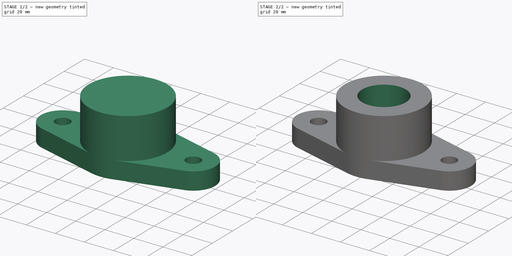
[diagram: build sequence overview — one tinted view per stage of 2, left to right]
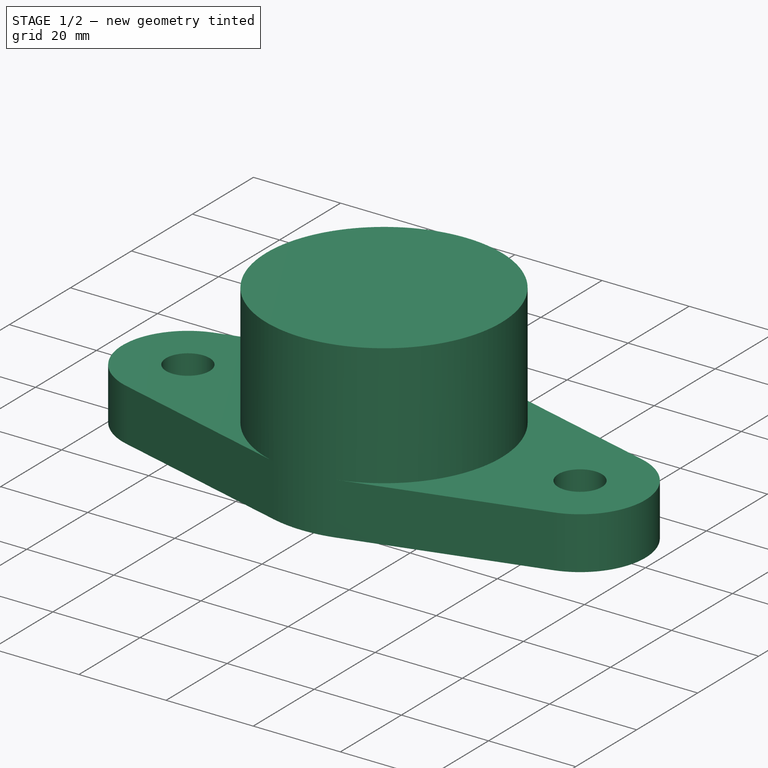
[diagram: stage 1 of 2 — iso view after this stage's code; geometry added in this stage tinted green]
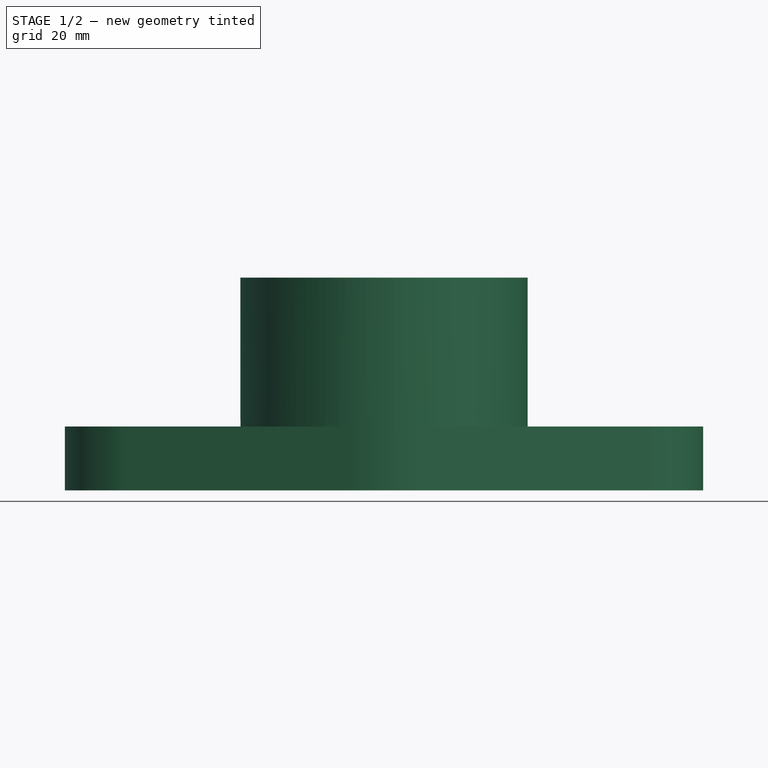
[diagram: stage 1 of 2 — front view after this stage's code; geometry added in this stage tinted green]
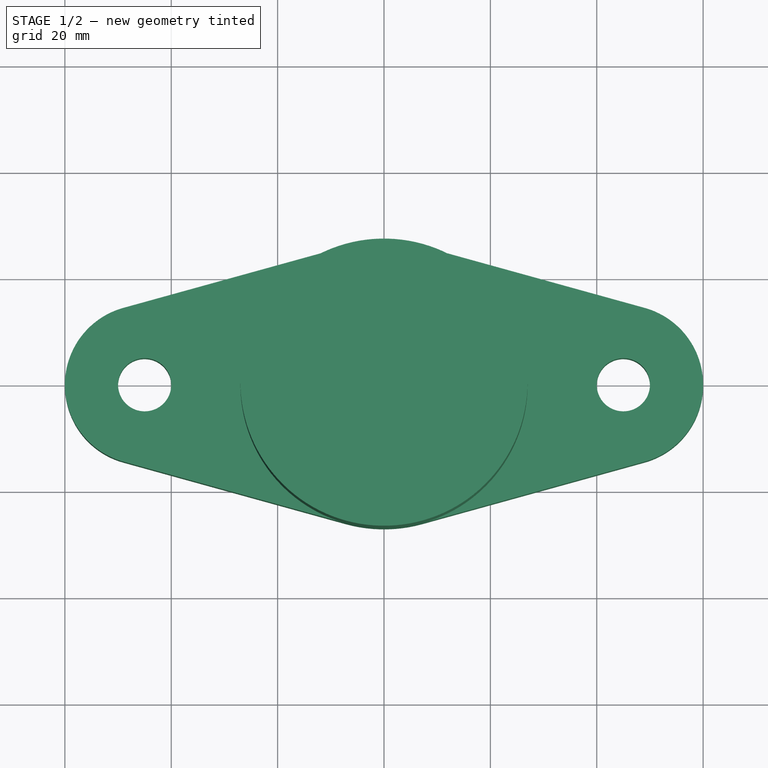
[diagram: stage 1 of 2 — top view after this stage's code; geometry added in this stage tinted green]
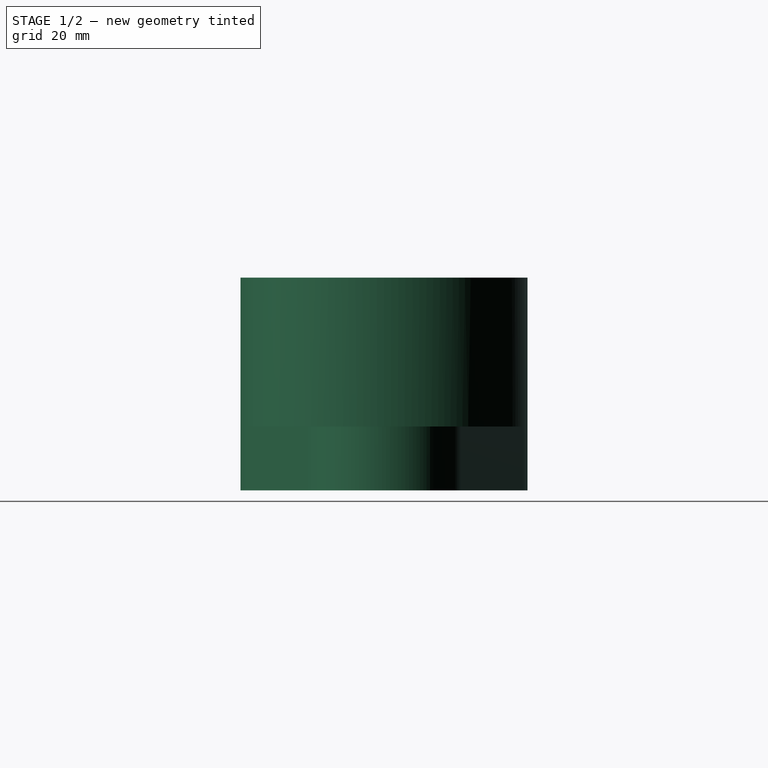
[diagram: stage 1 of 2 — right view after this stage's code; geometry added in this stage tinted green]
FCSTD DOCUMENT  (FreeCAD 0.16R)
Label: Fig 2.56 Final
License: All rights reserved
LicenseURL: http://en.wikipedia.org/wiki/All_rights_reserved
objects: Sketcher::SketchObject×3, PartDesign::Pad×2, PartDesign::Pocket×1
note: 9 computed .brp shape members not serialized (recipe doc carries the construction recipe); baked Part::Feature solids carry a one-line shape summary decoded from their .brp

FEATURE [Sketcher::SketchObject] Sketch
  sketch-geometry (10):
    g0: ArcOfCircle CenterX=0 CenterY=0 CenterZ=0 NormalX=0 NormalY=0 NormalZ=1 Radius=27 StartAngle=1.30086 EndAngle=1.84073
    g1: ArcOfCircle CenterX=45 CenterY=0 CenterZ=0 NormalX=0 NormalY=0 NormalZ=1 Radius=15 StartAngle=4.98232 EndAngle=7.58405
    g2: ArcOfCircle CenterX=-45 CenterY=0 CenterZ=0 NormalX=0 NormalY=0 NormalZ=1 Radius=15 StartAngle=1.84073 EndAngle=4.44246
    g3: Circle CenterX=45 CenterY=0 CenterZ=0 NormalX=0 NormalY=0 NormalZ=1 Radius=5
    g4: Circle CenterX=-45 CenterY=0 CenterZ=0 NormalX=0 NormalY=0 NormalZ=1 Radius=5
    g5: LineSegment StartX=-49 StartY=14.4568 StartZ=0 EndX=-7.2 EndY=26.0223 EndZ=0
    g6: LineSegment StartX=7.2 StartY=26.0223 StartZ=0 EndX=49 EndY=14.4568 EndZ=0
    g7: LineSegment StartX=49 StartY=-14.4568 StartZ=0 EndX=7.2 EndY=-26.0223 EndZ=0
    g8: LineSegment StartX=-7.2 StartY=-26.0223 StartZ=0 EndX=-49 EndY=-14.4568 EndZ=0
    g9: ArcOfCircle CenterX=0 CenterY=0 CenterZ=0 NormalX=0 NormalY=0 NormalZ=1 Radius=27 StartAngle=4.44246 EndAngle=4.98232
  constraints (30):
    c: Coincident(g0,g-1)
    c: Radius(g0) = 27
    c: PointOnObject(g1,g-1)
    c: PointOnObject(g2,g-1)
    c: Radius(g2) = 15
    c: Equal(g2,g1)
    c: Coincident(g3,g1)
    c: Coincident(g4,g2)
    c: Radius(g4) = 5
    c: Equal(g4,g3)
    c: DistanceX(g2,g1) = 90
    c: Symmetric(g2,g1,g-2)
    c: Coincident(g1,g7)
    c: Coincident(g1,g6)
    c: Coincident(g0,g6)
    c: Coincident(g9,g7)
    c: Equal(g0,g9)
    c: Coincident(g0,g5)
    c: Coincident(g9,g8)
    c: Coincident(g0,g9)
    c: Coincident(g2,g5)
    c: Coincident(g2,g8)
    c: Tangent(g5,g2)
    c: Tangent(g0,g5)
    c: Tangent(g0,g6)
    c: Tangent(g1,g6)
    c: Tangent(g1,g7)
    c: Tangent(g7,g9)
    c: Tangent(g9,g8)
    c: Tangent(g8,g2)
FEATURE [PartDesign::Pad] Pad
  Length = 12
  Length2 = 100
  Sketch = -> Sketch
  Type = 0
FEATURE [Sketcher::SketchObject] Sketch001
  Placement = pos=(0,0,12) rot=(0,0,1;0rad)
  Support = -> Pad [Face12]
  sketch-geometry (1):
    g0: Circle CenterX=0 CenterY=0 CenterZ=0 NormalX=0 NormalY=0 NormalZ=1 Radius=27
  constraints (2):
    c: Coincident(g0,g-1)
    c: Radius(g0) = 27
FEATURE [PartDesign::Pad] Pad001
  Length = 28
  Length2 = 100
  Sketch = -> Sketch001
  Type = 0
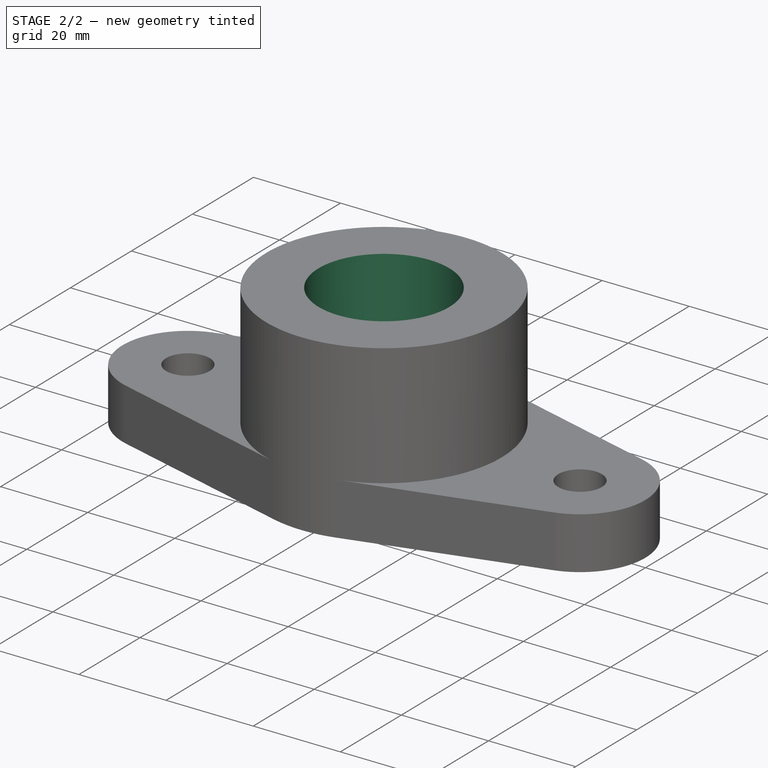
[diagram: stage 2 of 2 — iso view after this stage's code; geometry added in this stage tinted green]
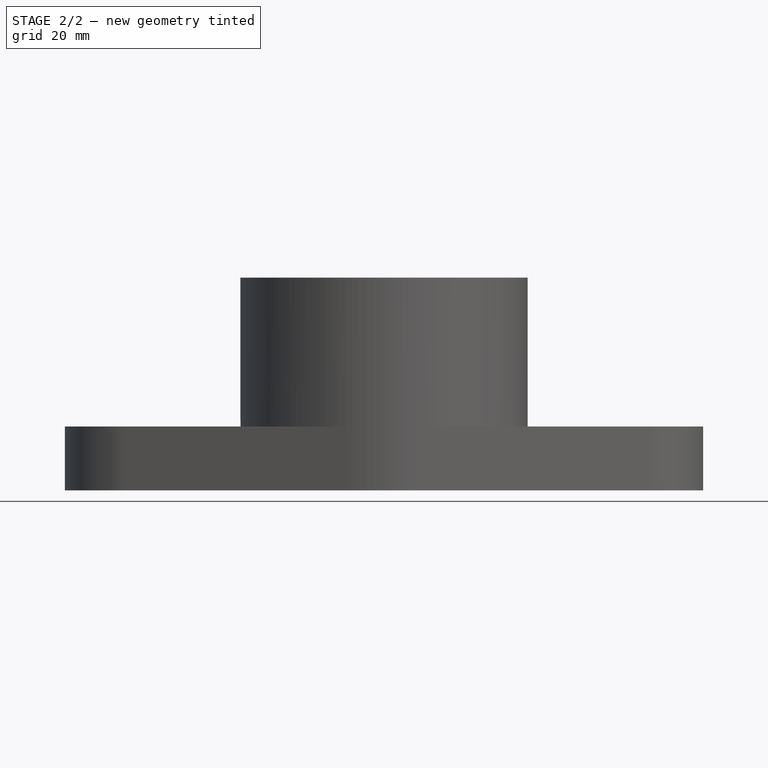
[diagram: stage 2 of 2 — front view after this stage's code; geometry added in this stage tinted green]
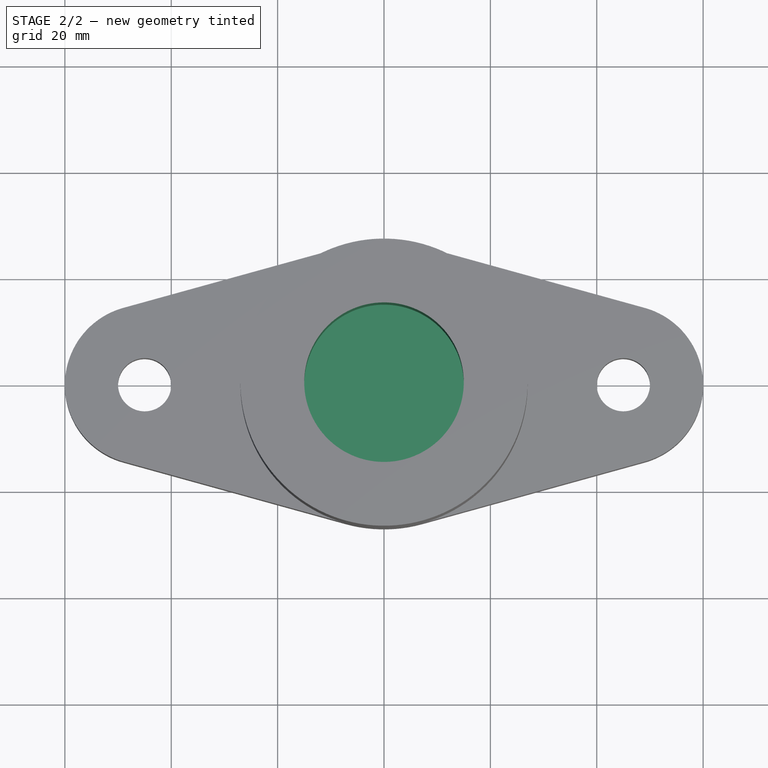
[diagram: stage 2 of 2 — top view after this stage's code; geometry added in this stage tinted green]
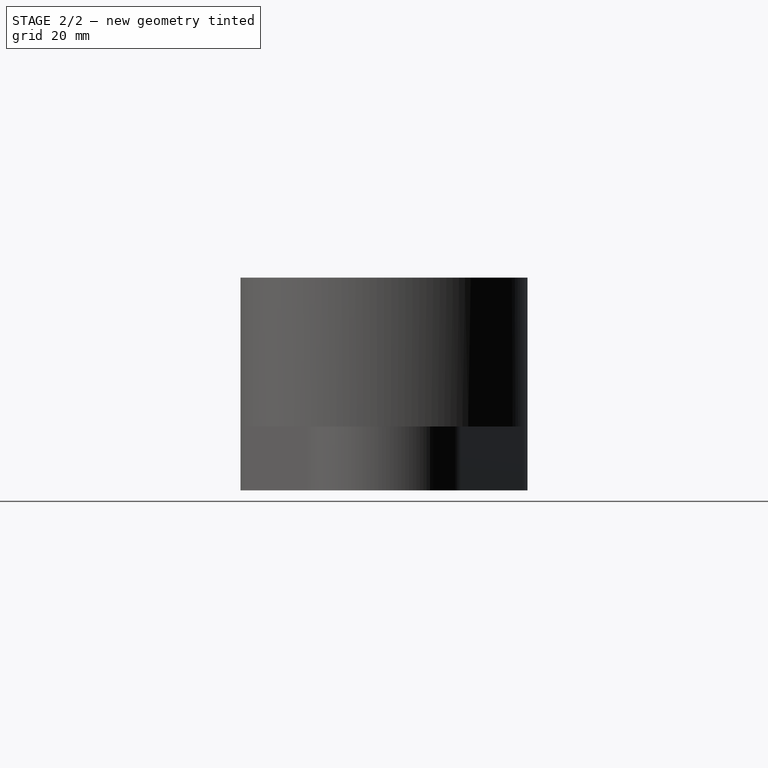
[diagram: stage 2 of 2 — right view after this stage's code; geometry added in this stage tinted green]
FEATURE [Sketcher::SketchObject] Sketch002
  Placement = pos=(0,0,40) rot=(0,0,1;0rad)
  Support = -> Pad001 [Face1]
  sketch-geometry (1):
    g0: Circle CenterX=0 CenterY=0 CenterZ=0 NormalX=0 NormalY=0 NormalZ=1 Radius=15
  constraints (2):
    c: Coincident(g0,g-1)
    c: Radius(g0) = 15
FEATURE [PartDesign::Pocket] Pocket
  Length = 25
  Sketch = -> Sketch002
  Type = 0
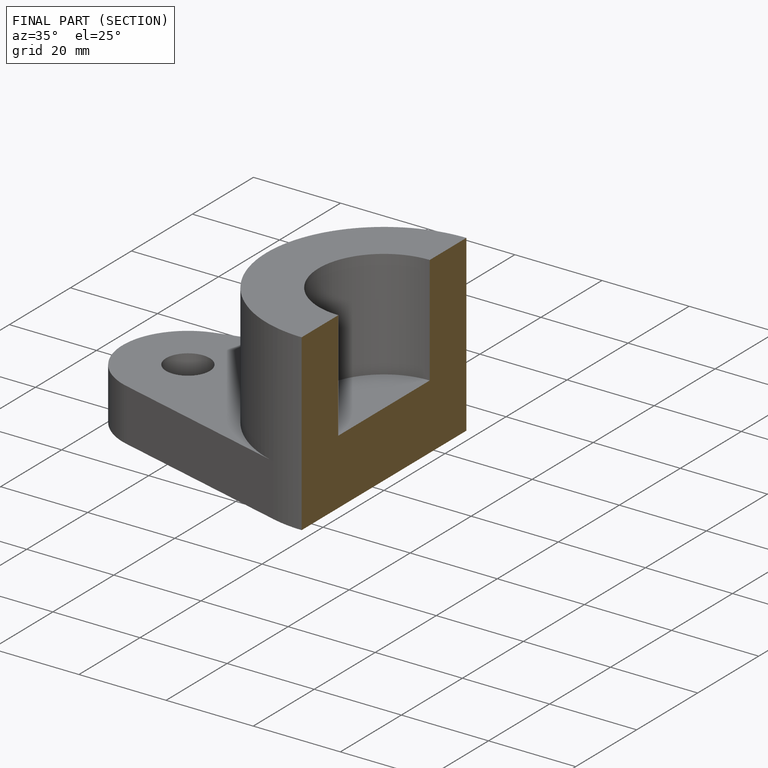
[diagram: finished part — half-section view (interior)]
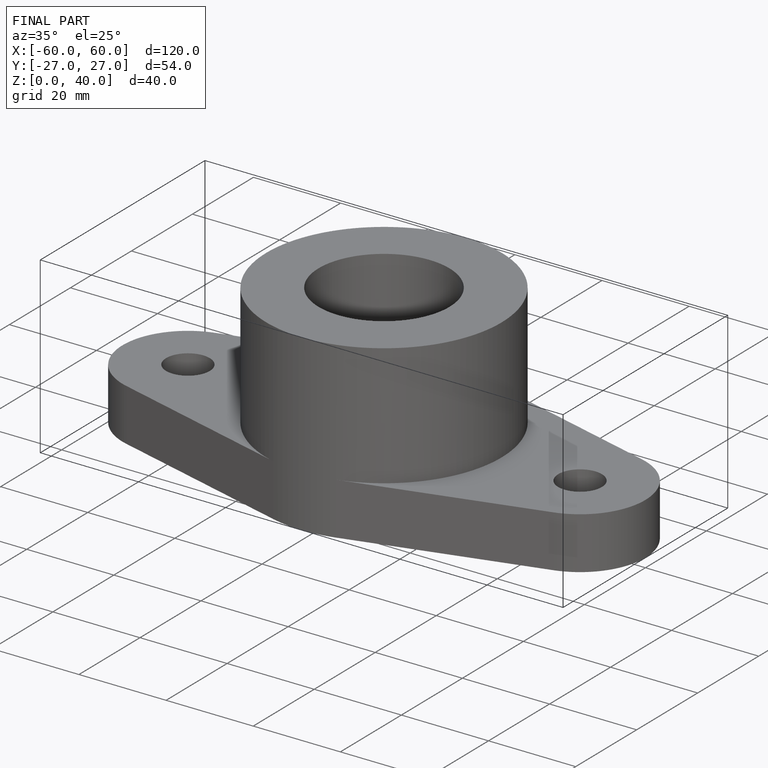
[diagram: finished part — iso view with bounding-box wireframe]
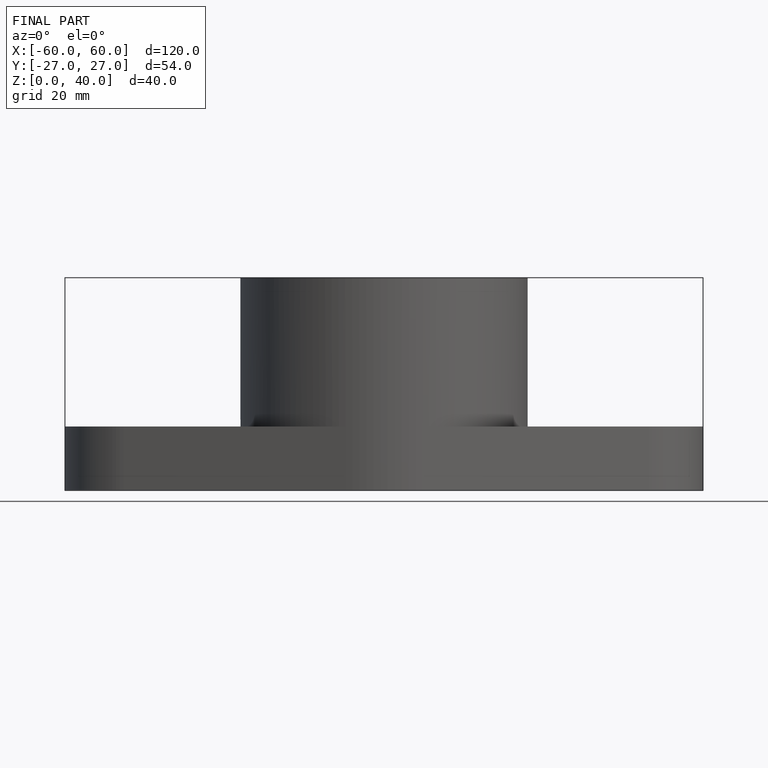
[diagram: finished part — front view with bounding-box wireframe]
